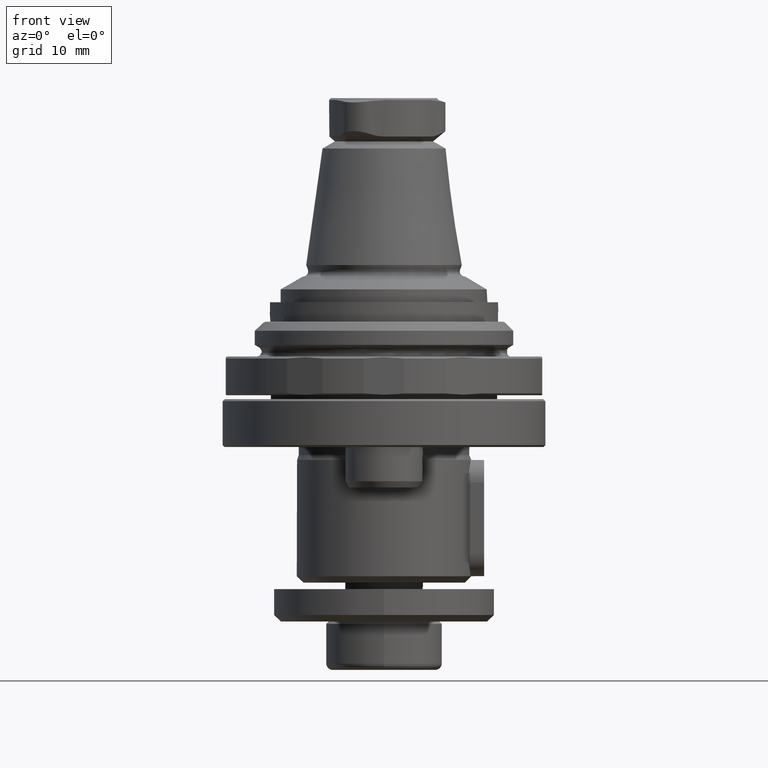
[diagram: clean part render]
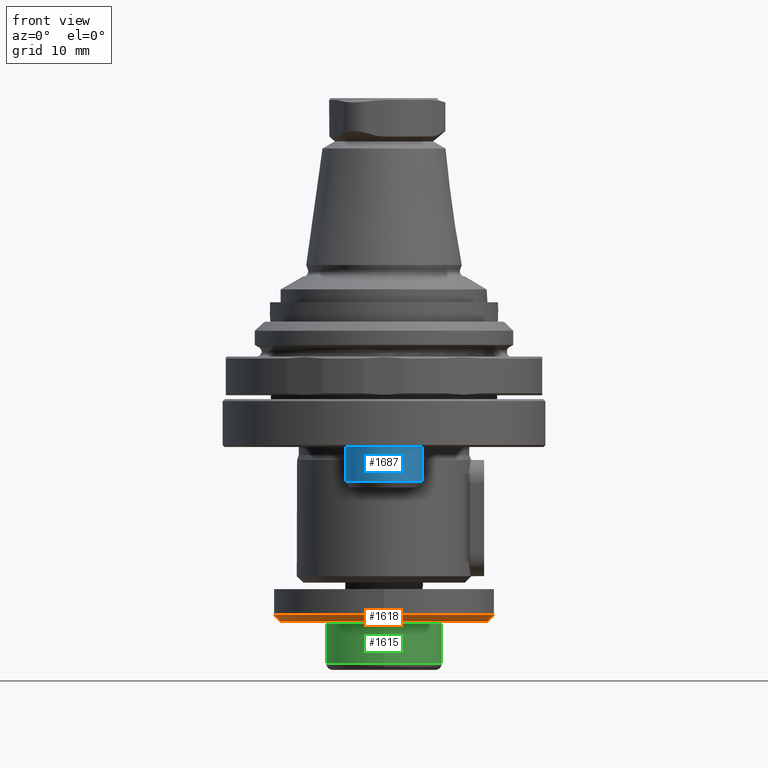
[diagram: same view with three faces highlighted in distinct colors, each labeled with its STEP entity id]
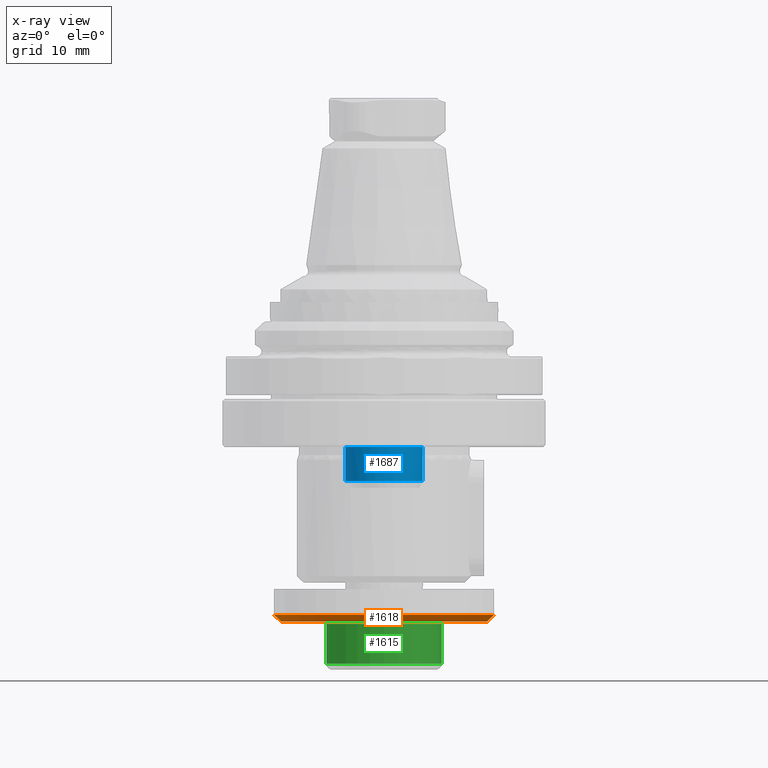
[diagram: x-ray of the same camera — body ghosted, the three highlighted faces saturated]
A machine part, front view with three faces highlighted in distinct colors.
The next image is the same camera in x-ray (body ghosted, the three faces saturated) — at least one of them is partly hidden behind the body in this view.
Their STEP definitions:

[orange] entity #1618 — the highlighted conical surface has half-angle 45 deg.
#436=ORIENTED_EDGE('',*,*,#864,.F.);
#437=ORIENTED_EDGE('',*,*,#865,.T.);
#864=EDGE_CURVE('',#1067,#1067,#1189,.T.);
#865=EDGE_CURVE('',#1068,#1068,#1190,.T.);
#1067=VERTEX_POINT('',#2696);
#1068=VERTEX_POINT('',#2699);
#1189=CIRCLE('',#1757,16.);
#1190=CIRCLE('',#1759,17.);
#1292=EDGE_LOOP('',(#436));
#1293=EDGE_LOOP('',(#437));
#1447=FACE_BOUND('',#1292,.T.);
#1448=FACE_BOUND('',#1293,.T.);
#1580=CONICAL_SURFACE('',#1758,17.,0.785398163397448);
#1618=ADVANCED_FACE('',(#1447,#1448),#1580,.T.);
#1757=AXIS2_PLACEMENT_3D('',#2695,#2021,#2022);
#1758=AXIS2_PLACEMENT_3D('',#2697,#2023,#2024);
#1759=AXIS2_PLACEMENT_3D('',#2698,#2025,#2026);
#2021=DIRECTION('',(-4.62223186652937E-33,2.46519032881566E-32,-1.));
#2022=DIRECTION('',(0.,-1.,1.66533453693773E-16));
#2023=DIRECTION('',(4.62223186652937E-33,-2.46519032881566E-32,1.));
#2024=DIRECTION('',(0.,1.,-1.66533453693773E-16));
#2025=DIRECTION('',(-4.62223186652937E-33,2.46519032881566E-32,-1.));
#2026=DIRECTION('',(0.,-1.,1.66533453693773E-16));
#2695=CARTESIAN_POINT('',(-2.77333911991762E-32,1.6851887224338E-31,-42.));
#2696=CARTESIAN_POINT('',(-2.77333911991762E-32,-16.,-42.));
#2697=CARTESIAN_POINT('',(-2.31111593326468E-32,1.43866968955223E-31,-41.));
#2698=CARTESIAN_POINT('',(-2.31111593326468E-32,1.43866968955223E-31,-41.));
#2699=CARTESIAN_POINT('',(-2.31111593326468E-32,-17.,-41.));

[blue] entity #1687 — the highlighted cylindrical surface (partial cylindrical patch) has radius 6 mm, axis along (0, 0, -1).
#128=LINE('',#3070,#202);
#129=LINE('',#3071,#203);
#202=VECTOR('',#2341,1000.);
#203=VECTOR('',#2342,1000.);
#243=CYLINDRICAL_SURFACE('',#1895,6.00000000000001);
#701=ORIENTED_EDGE('',*,*,#999,.F.);
#702=ORIENTED_EDGE('',*,*,#1001,.T.);
#703=ORIENTED_EDGE('',*,*,#1000,.F.);
#704=ORIENTED_EDGE('',*,*,#993,.T.);
#705=ORIENTED_EDGE('',*,*,#879,.T.);
#706=ORIENTED_EDGE('',*,*,#995,.T.);
#879=EDGE_CURVE('',#1077,#1078,#1204,.T.);
#993=EDGE_CURVE('',#1162,#1077,#1256,.T.);
#995=EDGE_CURVE('',#1078,#1163,#1257,.T.);
#999=EDGE_CURVE('',#1167,#1163,#128,.F.);
#1000=EDGE_CURVE('',#1162,#1164,#129,.T.);
#1001=EDGE_CURVE('',#1167,#1164,#1258,.F.);
#1077=VERTEX_POINT('',#2722);
#1078=VERTEX_POINT('',#2724);
#1162=VERTEX_POINT('',#3052);
#1163=VERTEX_POINT('',#3054);
#1164=VERTEX_POINT('',#3061);
#1167=VERTEX_POINT('',#3069);
#1204=CIRCLE('',#1781,6.);
#1256=CIRCLE('',#1892,6.);
#1257=CIRCLE('',#1893,6.);
#1258=CIRCLE('',#1896,6.00000000000001);
#1399=EDGE_LOOP('',(#701,#702,#703,#704,#705,#706));
#1554=FACE_BOUND('',#1399,.T.);
#1687=ADVANCED_FACE('',(#1554),#243,.T.);
#1781=AXIS2_PLACEMENT_3D('',#2733,#2069,#2070);
#1892=AXIS2_PLACEMENT_3D('',#3051,#2333,#2334);
#1893=AXIS2_PLACEMENT_3D('',#3055,#2336,#2337);
#1895=AXIS2_PLACEMENT_3D('',#3072,#2343,#2344);
#1896=AXIS2_PLACEMENT_3D('',#3073,#2345,#2346);
#2069=DIRECTION('',(0.,0.,-1.));
#2070=DIRECTION('',(9.86076131526265E-32,-1.,0.));
#2333=DIRECTION('',(0.,0.,-1.));
#2334=DIRECTION('',(9.86076131526265E-32,-1.,0.));
#2336=DIRECTION('',(0.,0.,-1.));
#2337=DIRECTION('',(9.86076131526265E-32,-1.,0.));
#2341=DIRECTION('',(0.,0.,-1.));
#2342=DIRECTION('',(0.,0.,-1.));
#2343=DIRECTION('',(0.,0.,-1.));
#2344=DIRECTION('',(9.86076131526265E-32,-1.,0.));
#2345=DIRECTION('',(0.,0.,-1.));
#2346=DIRECTION('',(9.86076131526265E-32,-1.,0.));
#2722=CARTESIAN_POINT('',(4.24527973165493,-13.76,-15.));
#2724=CARTESIAN_POINT('',(-4.24527973165493,-13.76,-15.));
#2733=CARTESIAN_POINT('',(0.,-18.,-15.));
#3051=CARTESIAN_POINT('',(0.,-18.,-15.));
#3052=CARTESIAN_POINT('',(4.07921561087424,-13.6,-15.));
#3054=CARTESIAN_POINT('',(-4.07921561087426,-13.6,-15.));
#3055=CARTESIAN_POINT('',(0.,-18.,-15.));
#3061=CARTESIAN_POINT('',(4.07921561087426,-13.6,-20.3));
#3069=CARTESIAN_POINT('',(-4.07921561087426,-13.6,-20.3));
#3070=CARTESIAN_POINT('',(-4.07921561087426,-13.6,-75.));
#3071=CARTESIAN_POINT('',(4.07921561087426,-13.6,-75.));
#3072=CARTESIAN_POINT('',(0.,-18.,-75.));
#3073=CARTESIAN_POINT('',(0.,-18.,-20.3));

[green] entity #1615 — the highlighted cylindrical surface (bore or boss wall) has radius 9 mm, axis along (0, -0, 1).
#220=CYLINDRICAL_SURFACE('',#1752,9.);
#430=ORIENTED_EDGE('',*,*,#861,.T.);
#431=ORIENTED_EDGE('',*,*,#862,.F.);
#861=EDGE_CURVE('',#1064,#1064,#1186,.T.);
#862=EDGE_CURVE('',#1065,#1065,#1187,.T.);
#1064=VERTEX_POINT('',#2687);
#1065=VERTEX_POINT('',#2690);
#1186=CIRCLE('',#1751,9.);
#1187=CIRCLE('',#1753,9.);
#1286=EDGE_LOOP('',(#430));
#1287=EDGE_LOOP('',(#431));
#1441=FACE_BOUND('',#1286,.T.);
#1442=FACE_BOUND('',#1287,.T.);
#1615=ADVANCED_FACE('',(#1441,#1442),#220,.T.);
#1751=AXIS2_PLACEMENT_3D('',#2686,#2009,#2010);
#1752=AXIS2_PLACEMENT_3D('',#2688,#2011,#2012);
#1753=AXIS2_PLACEMENT_3D('',#2689,#2013,#2014);
#2009=DIRECTION('',(4.62223186652937E-33,-2.46519032881566E-32,1.));
#2010=DIRECTION('',(0.,-1.,1.66533453693773E-16));
#2011=DIRECTION('',(4.62223186652937E-33,-2.46519032881566E-32,1.));
#2012=DIRECTION('',(0.,-1.,1.66533453693773E-16));
#2013=DIRECTION('',(4.62223186652937E-33,-2.46519032881566E-32,1.));
#2014=DIRECTION('',(0.,-1.,1.66533453693773E-16));
#2686=CARTESIAN_POINT('',(-5.77778979360866E-32,3.28756241506902E-31,-48.4999999144287));
#2687=CARTESIAN_POINT('',(-5.77778979360866E-32,-9.,-48.4999999144287));
#2688=CARTESIAN_POINT('',(-8.3200173201998E-32,4.64341709591763E-31,-53.9999999144286));
#2689=CARTESIAN_POINT('',(-2.95129500722594E-32,1.78009852899823E-31,-42.3849999144286));
#2690=CARTESIAN_POINT('',(-2.95129500722594E-32,-9.,-42.3849999144286));